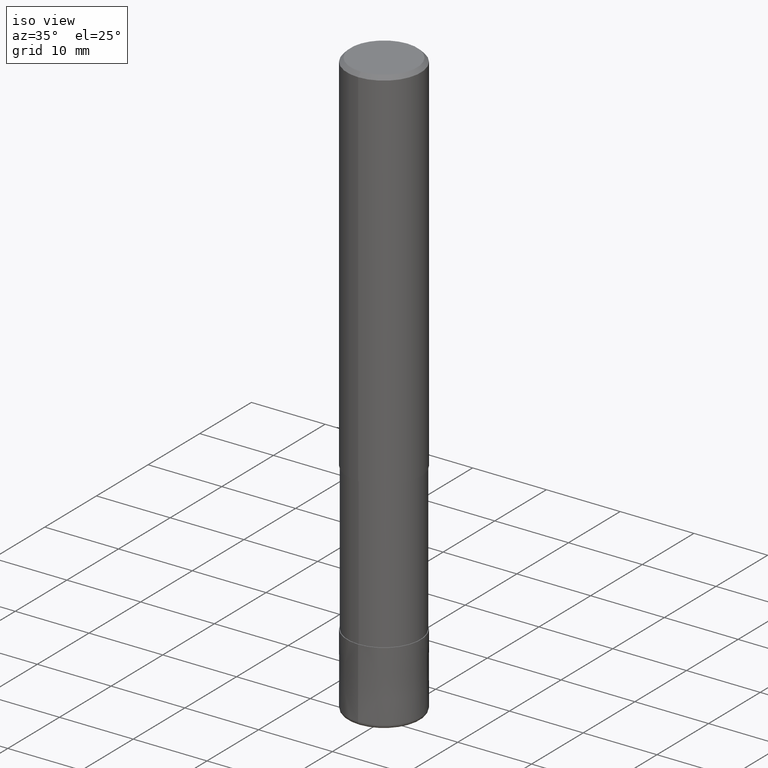
[diagram: clean part render]
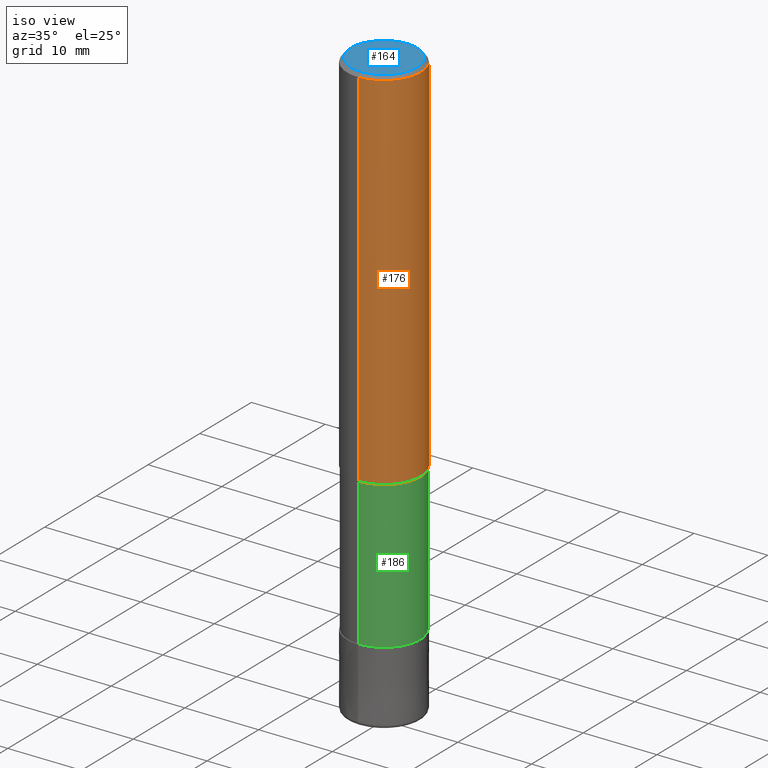
[diagram: same view with three faces highlighted in distinct colors, each labeled with its STEP entity id]
A machine part, iso view with three faces highlighted in distinct colors.
Their STEP definitions:

[orange] entity #176 — the highlighted cylindrical surface (partial cylindrical patch) has radius 5 mm, axis along (-0, -0, 1).
#100=VERTEX_POINT('',#238);
#114=VERTEX_POINT('',#253);
#138=VERTEX_POINT('',#280);
#150=EDGE_CURVE('',#100,#158,#294,.T.);
#158=VERTEX_POINT('',#302);
#166=EDGE_CURVE('',#138,#100,#311,.T.);
#174=EDGE_CURVE('',#138,#114,#320,.T.);
#176=ADVANCED_FACE('',(#322),#323,.T.);
#190=EDGE_CURVE('',#158,#114,#340,.T.);
#238=CARTESIAN_POINT('',(0.0,5.0,-50.0));
#253=CARTESIAN_POINT('',(6.12303176911189E-016,-5.0,-0.5));
#280=CARTESIAN_POINT('',(0.0,5.0,-0.5));
#294=CIRCLE('',#451,5.0);
#302=CARTESIAN_POINT('',(6.12303176911189E-016,-5.0,-50.0));
#311=LINE('',#472,#473);
#320=CIRCLE('',#485,5.0);
#322=FACE_OUTER_BOUND('',#487,.T.);
#323=CYLINDRICAL_SURFACE('',#488,5.0);
#340=LINE('',#511,#512);
#451=AXIS2_PLACEMENT_3D('',#617,#618,#619);
#472=CARTESIAN_POINT('',(-6.12303176911189E-016,5.0,-25.25));
#473=VECTOR('',#634,1.0);
#485=AXIS2_PLACEMENT_3D('',#644,#645,#646);
#487=EDGE_LOOP('',(#648,#649,#650,#651));
#488=AXIS2_PLACEMENT_3D('',#652,#653,#654);
#511=CARTESIAN_POINT('',(6.12303176911189E-016,-5.0,-25.25));
#512=VECTOR('',#681,1.0);
#617=CARTESIAN_POINT('',(0.0,0.0,-50.0));
#618=DIRECTION('',(0.0,0.0,-1.0));
#619=DIRECTION('',(0.0,1.0,0.0));
#634=DIRECTION('',(0.0,0.0,-1.0));
#644=CARTESIAN_POINT('',(0.0,0.0,-0.5));
#645=DIRECTION('',(0.0,0.0,-1.0));
#646=DIRECTION('',(0.0,1.0,0.0));
#648=ORIENTED_EDGE('',*,*,#166,.F.);
#649=ORIENTED_EDGE('',*,*,#174,.T.);
#650=ORIENTED_EDGE('',*,*,#190,.F.);
#651=ORIENTED_EDGE('',*,*,#150,.F.);
#652=CARTESIAN_POINT('',(0.0,0.0,-25.25));
#653=DIRECTION('',(-0.0,-0.0,1.0));
#654=DIRECTION('',(0.0,1.0,0.0));
#681=DIRECTION('',(-0.0,-0.0,1.0));

[blue] entity #164 — the highlighted planar face has unit normal (-0, 0, 1).
#108=VERTEX_POINT('',#247);
#124=EDGE_CURVE('',#130,#108,#265,.T.);
#130=VERTEX_POINT('',#272);
#142=EDGE_CURVE('',#108,#130,#284,.T.);
#164=ADVANCED_FACE('',(#308),#309,.T.);
#247=CARTESIAN_POINT('',(5.5107285922007E-016,-4.5,0.0));
#265=CIRCLE('',#418,4.5);
#272=CARTESIAN_POINT('',(0.0,4.5,0.0));
#284=CIRCLE('',#438,4.5);
#308=FACE_OUTER_BOUND('',#468,.T.);
#309=PLANE('',#469);
#418=AXIS2_PLACEMENT_3D('',#584,#585,#586);
#438=AXIS2_PLACEMENT_3D('',#599,#600,#601);
#468=EDGE_LOOP('',(#629,#630));
#469=AXIS2_PLACEMENT_3D('',#631,#632,#633);
#584=CARTESIAN_POINT('',(0.0,0.0,0.0));
#585=DIRECTION('',(0.0,0.0,-1.0));
#586=DIRECTION('',(0.0,1.0,0.0));
#599=CARTESIAN_POINT('',(0.0,0.0,0.0));
#600=DIRECTION('',(0.0,0.0,-1.0));
#601=DIRECTION('',(0.0,1.0,0.0));
#629=ORIENTED_EDGE('',*,*,#124,.F.);
#630=ORIENTED_EDGE('',*,*,#142,.F.);
#631=CARTESIAN_POINT('',(0.0,2.25,0.0));
#632=DIRECTION('',(-0.0,0.0,1.0));
#633=DIRECTION('',(0.0,-1.0,0.0));

[green] entity #186 — the highlighted cylindrical surface (partial cylindrical patch) has radius 4.91 mm, axis along (-0, -0, 1).
#128=VERTEX_POINT('',#270);
#132=EDGE_CURVE('',#136,#128,#274,.T.);
#136=VERTEX_POINT('',#278);
#140=VERTEX_POINT('',#282);
#154=EDGE_CURVE('',#140,#172,#298,.T.);
#156=EDGE_CURVE('',#128,#172,#300,.T.);
#172=VERTEX_POINT('',#318);
#186=ADVANCED_FACE('',(#335),#336,.T.);
#200=EDGE_CURVE('',#140,#136,#353,.T.);
#270=CARTESIAN_POINT('',(6.01275596695018E-016,-4.90995,-70.0));
#274=CIRCLE('',#428,4.90995);
#278=CARTESIAN_POINT('',(0.0,4.90995,-70.0));
#282=CARTESIAN_POINT('',(0.0,4.90995,-50.0));
#298=CIRCLE('',#457,4.90995);
#300=LINE('',#460,#461);
#318=CARTESIAN_POINT('',(6.01275596695018E-016,-4.90995,-50.0));
#335=FACE_OUTER_BOUND('',#503,.T.);
#336=CYLINDRICAL_SURFACE('',#504,4.90995);
#353=LINE('',#527,#528);
#428=AXIS2_PLACEMENT_3D('',#595,#596,#597);
#457=AXIS2_PLACEMENT_3D('',#623,#624,#625);
#460=CARTESIAN_POINT('',(6.01275596695018E-016,-4.90995,-60.0));
#461=VECTOR('',#626,1.0);
#503=EDGE_LOOP('',(#673,#674,#675,#676));
#504=AXIS2_PLACEMENT_3D('',#677,#678,#679);
#527=CARTESIAN_POINT('',(-6.01275596695018E-016,4.90995,-60.0));
#528=VECTOR('',#709,1.0);
#595=CARTESIAN_POINT('',(0.0,0.0,-70.0));
#596=DIRECTION('',(0.0,0.0,-1.0));
#597=DIRECTION('',(0.0,1.0,0.0));
#623=CARTESIAN_POINT('',(0.0,0.0,-50.0));
#624=DIRECTION('',(0.0,0.0,-1.0));
#625=DIRECTION('',(0.0,1.0,0.0));
#626=DIRECTION('',(-0.0,-0.0,1.0));
#673=ORIENTED_EDGE('',*,*,#200,.F.);
#674=ORIENTED_EDGE('',*,*,#154,.T.);
#675=ORIENTED_EDGE('',*,*,#156,.F.);
#676=ORIENTED_EDGE('',*,*,#132,.F.);
#677=CARTESIAN_POINT('',(0.0,0.0,-60.0));
#678=DIRECTION('',(-0.0,-0.0,1.0));
#679=DIRECTION('',(0.0,1.0,0.0));
#709=DIRECTION('',(0.0,0.0,-1.0));